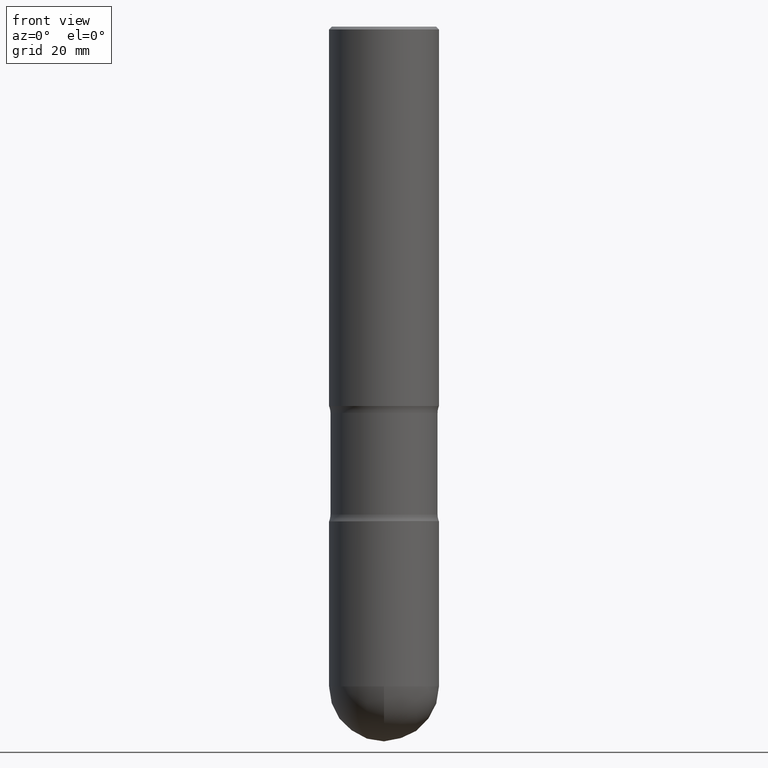
[diagram: clean part render]
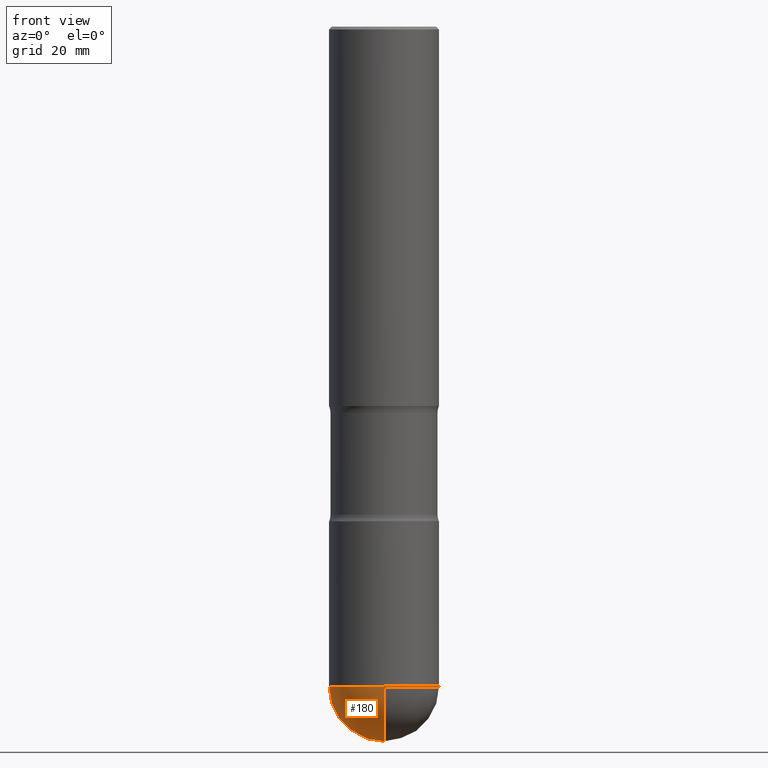
[diagram: same view with one face highlighted and labeled with its STEP entity id]
A machine part, front view. The second image highlights one B-rep face of the part: STEP entity #180.
In plain terms, the highlighted spherical surface has radius 10 mm.
Its self-contained STEP definition (entity closure, byte-faithful):
#5 = CARTESIAN_POINT ( 'NONE',  ( -0.3936999999999992172, -1.163585338188923205E-14, -4.724399999999998379 ) ) ;
#14 = DIRECTION ( 'NONE',  ( -1.000000000000000000, 6.982962677686265922E-15, -4.883557194083112340E-29 ) ) ;
#40 = EDGE_CURVE ( 'NONE', #457, #244, #548, .T. ) ;
#45 = DIRECTION ( 'NONE',  ( -6.982962677686265133E-15, -1.000000000000000000, 4.163344669033682734E-15 ) ) ;
#50 = AXIS2_PLACEMENT_3D ( 'NONE', #508, #279, #192 ) ;
#51 = AXIS2_PLACEMENT_3D ( 'NONE', #271, #415, #106 ) ;
#69 = VERTEX_POINT ( 'NONE', #162 ) ;
#84 = CARTESIAN_POINT ( 'NONE',  ( 1.145236913752607900E-28, -1.663979747067784844E-14, -4.724399999999999267 ) ) ;
#89 = DIRECTION ( 'NONE',  ( 1.000000000000000000, -6.982962677686267499E-15, 0.000000000000000000 ) ) ;
#106 = DIRECTION ( 'NONE',  ( 7.105427357601001070E-15, 1.000000000000000000, 0.000000000000000000 ) ) ;
#111 = CIRCLE ( 'NONE', #435, 0.3936999999999992172 ) ;
#134 = FACE_OUTER_BOUND ( 'NONE', #187, .T. ) ;
#145 = DIRECTION ( 'NONE',  ( -6.982962677686265922E-15, -1.000000000000000000, 0.000000000000000000 ) ) ;
#146 = ORIENTED_EDGE ( 'NONE', *, *, #40, .F. ) ;
#162 = CARTESIAN_POINT ( 'NONE',  ( 1.239831625811866811E-28, -1.803850084602160544E-14, -5.118099999999998317 ) ) ;
#164 = CIRCLE ( 'NONE', #51, 0.3936999999999992728 ) ;
#177 = CARTESIAN_POINT ( 'NONE',  ( 1.155337282794105502E-28, -1.649515443723055294E-14, -4.724399999999998379 ) ) ;
#180 = ADVANCED_FACE ( 'NONE', ( #134 ), #493, .T. ) ;
#187 = EDGE_LOOP ( 'NONE', ( #413, #272, #228, #146 ) ) ;
#192 = DIRECTION ( 'NONE',  ( 1.000000000000000000, -6.982962677686267499E-15, 0.000000000000000000 ) ) ;
#193 = CARTESIAN_POINT ( 'NONE',  ( 2.797406750687623649E-15, 0.3936999999999826194, -4.724400000000000155 ) ) ;
#195 = VERTEX_POINT ( 'NONE', #215 ) ;
#215 = CARTESIAN_POINT ( 'NONE',  ( -2.749192406204962521E-15, -0.3937000000000158151, -4.724399999999996602 ) ) ;
#228 = ORIENTED_EDGE ( 'NONE', *, *, #232, .F. ) ;
#231 = CARTESIAN_POINT ( 'NONE',  ( 1.145236913752607900E-28, -1.663979747067784844E-14, -4.724399999999999267 ) ) ;
#232 = EDGE_CURVE ( 'NONE', #244, #195, #111, .T. ) ;
#244 = VERTEX_POINT ( 'NONE', #5 ) ;
#271 = CARTESIAN_POINT ( 'NONE',  ( 1.145236913752607900E-28, -1.663979747067784844E-14, -4.724399999999999267 ) ) ;
#272 = ORIENTED_EDGE ( 'NONE', *, *, #480, .T. ) ;
#279 = DIRECTION ( 'NONE',  ( -2.445468806185136597E-29, 3.491481338843145583E-15, 1.000000000000000000 ) ) ;
#362 = EDGE_CURVE ( 'NONE', #69, #457, #164, .T. ) ;
#381 = AXIS2_PLACEMENT_3D ( 'NONE', #231, #14, #145 ) ;
#397 = AXIS2_PLACEMENT_3D ( 'NONE', #84, #482, #45 ) ;
#413 = ORIENTED_EDGE ( 'NONE', *, *, #362, .F. ) ;
#415 = DIRECTION ( 'NONE',  ( 1.000000000000000000, -7.105427357601001070E-15, 4.926315508542082329E-29 ) ) ;
#435 = AXIS2_PLACEMENT_3D ( 'NONE', #177, #533, #89 ) ;
#437 = CIRCLE ( 'NONE', #381, 0.3936999999999992728 ) ;
#457 = VERTEX_POINT ( 'NONE', #193 ) ;
#480 = EDGE_CURVE ( 'NONE', #69, #195, #437, .T. ) ;
#482 = DIRECTION ( 'NONE',  ( 1.000000000000000000, -6.982962677686265133E-15, 4.883557194083111780E-29 ) ) ;
#493 = SPHERICAL_SURFACE ( 'NONE', #397, 0.3936999999999992728 ) ;
#508 = CARTESIAN_POINT ( 'NONE',  ( 1.155337282794105502E-28, -1.649515443723055294E-14, -4.724399999999998379 ) ) ;
#533 = DIRECTION ( 'NONE',  ( -2.445468806185136597E-29, 3.491481338843145583E-15, 1.000000000000000000 ) ) ;
#548 = CIRCLE ( 'NONE', #50, 0.3936999999999992172 ) ;